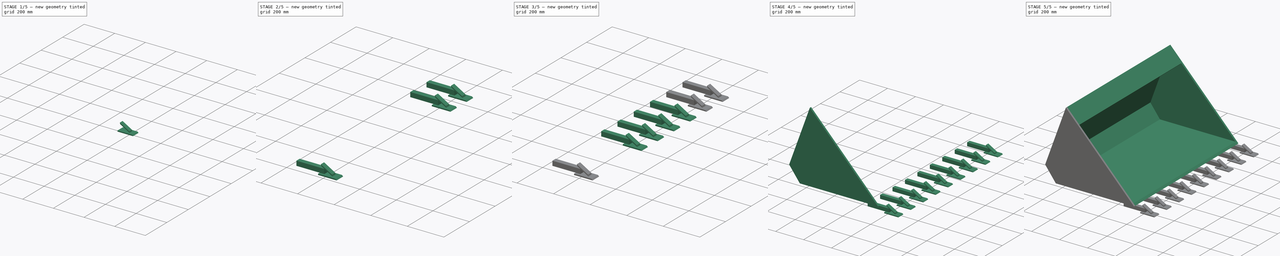
[diagram: build sequence overview — one tinted view per stage of 5, left to right]
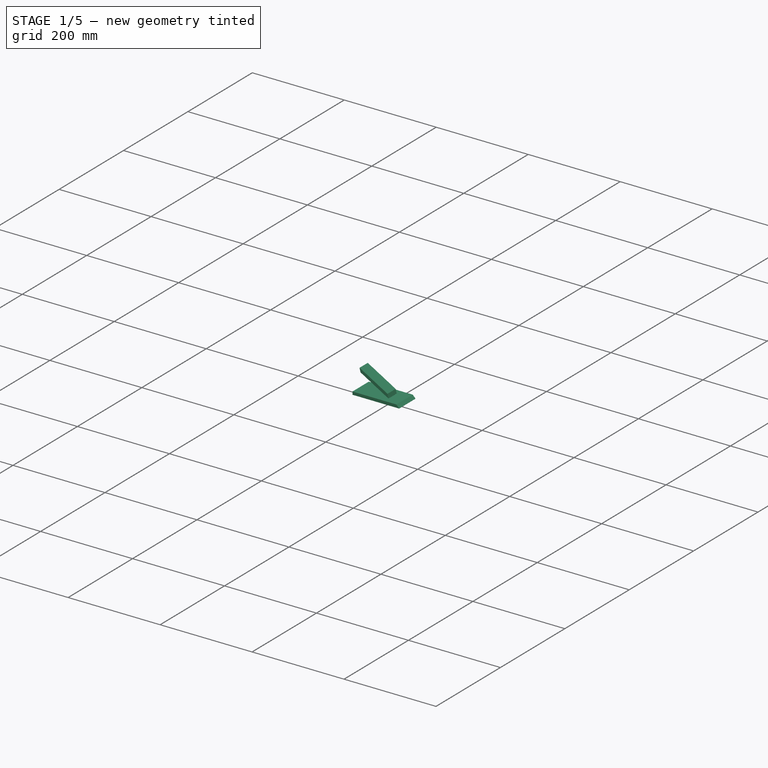
[diagram: stage 1 of 5 — iso view after this stage's code; geometry added in this stage tinted green]
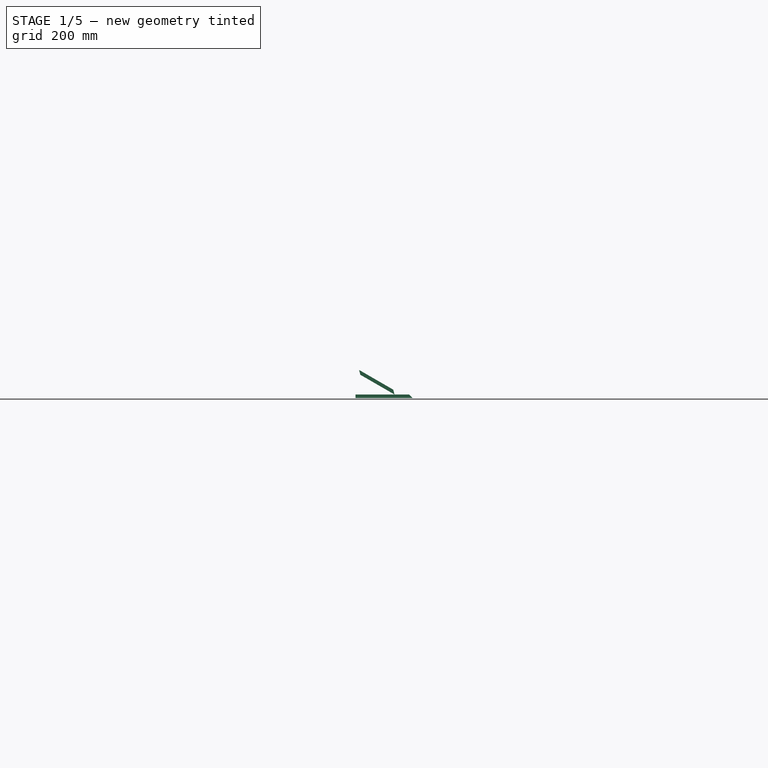
[diagram: stage 1 of 5 — front view after this stage's code; geometry added in this stage tinted green]
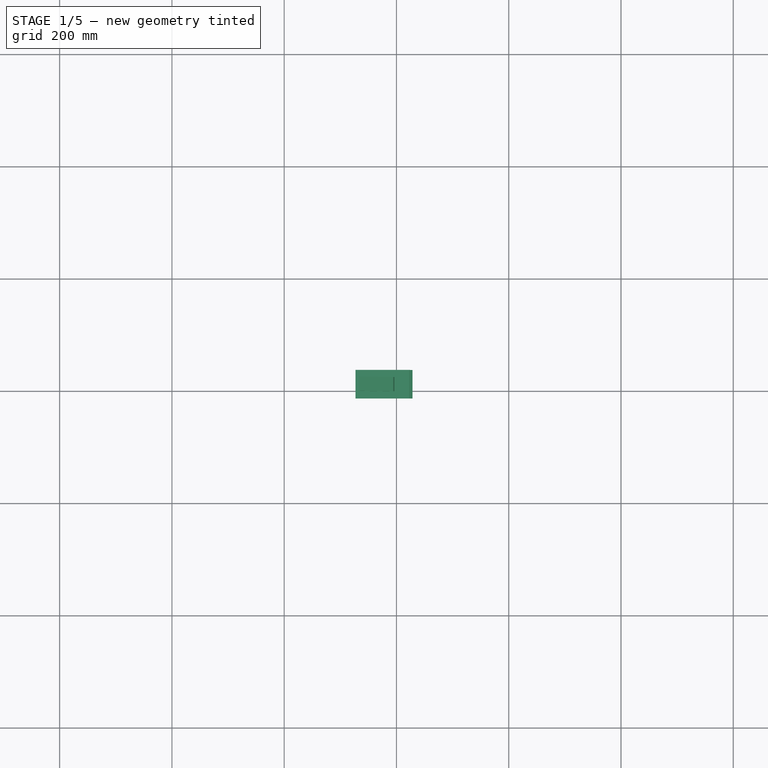
[diagram: stage 1 of 5 — top view after this stage's code; geometry added in this stage tinted green]
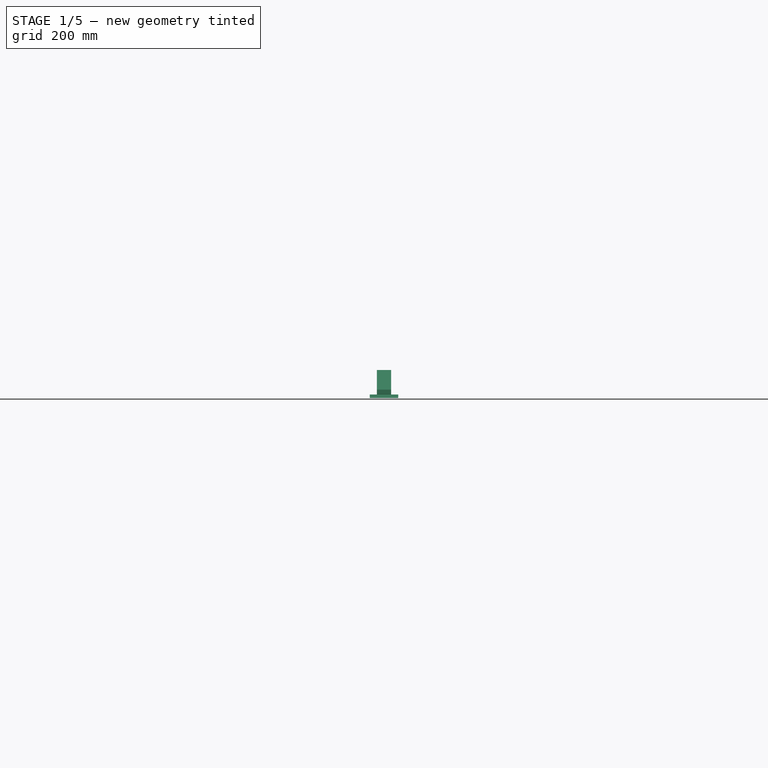
[diagram: stage 1 of 5 — right view after this stage's code; geometry added in this stage tinted green]
FCSTD DOCUMENT  (FreeCAD 0.16R6712 (Git))
Label: MT_ Bucket 25in + Teeth
License: All rights reserved
LicenseURL: http://en.wikipedia.org/wiki/All_rights_reserved
objects: Part::MultiFuse×12, PartDesign::Pad×3, Part::Box×3, Sketcher::SketchObject×2, Part::Chamfer×2
note: 25 computed .brp shape members not serialized (recipe doc carries the construction recipe); baked Part::Feature solids carry a one-line shape summary decoded from their .brp

FEATURE [Part::Box] Box001  label="Cube"
  Height = 6.35
  Length = 101.6
  Placement = pos=(127,-12.7,-6.35) rot=(0,0,1;0rad)
  Width = 50.8
FEATURE [Part::Box] Box002  label="Cube 01"
  Height = 6.35
  Length = 76.2
  Placement = pos=(130.39,-0.875268,38.108) rot=(0,1,0;0.523599rad)
  Width = 25.4
FEATURE [Part::Chamfer] Chamfer  label="Knife"
  Base = -> Box001
  Edges = 1 edges r=6.1: [Edge6]
FEATURE [Part::Chamfer] Chamfer001  label="Breaker bar"
  Base = -> Box002
  Edges = 2 edges r=6.1: [Edge4,Edge6]
  Placement = pos=(0,0.875268,0) rot=(0,0,1;0rad)
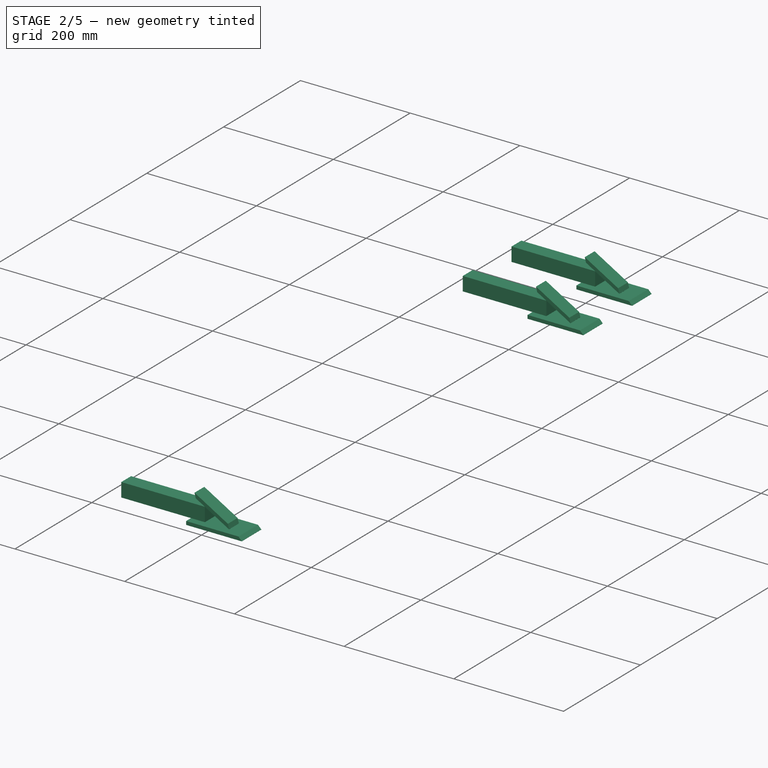
[diagram: stage 2 of 5 — iso view after this stage's code; geometry added in this stage tinted green]
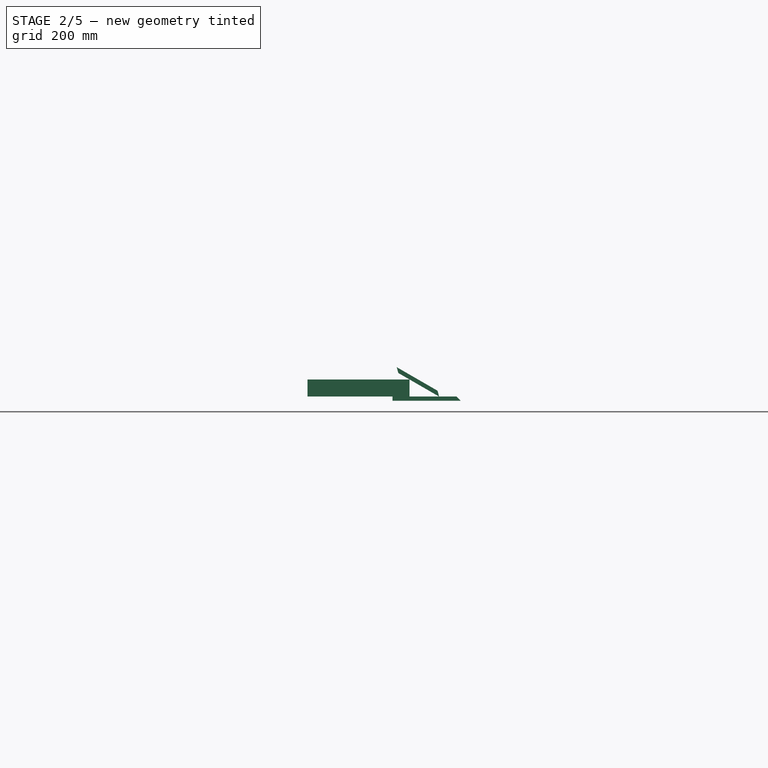
[diagram: stage 2 of 5 — front view after this stage's code; geometry added in this stage tinted green]
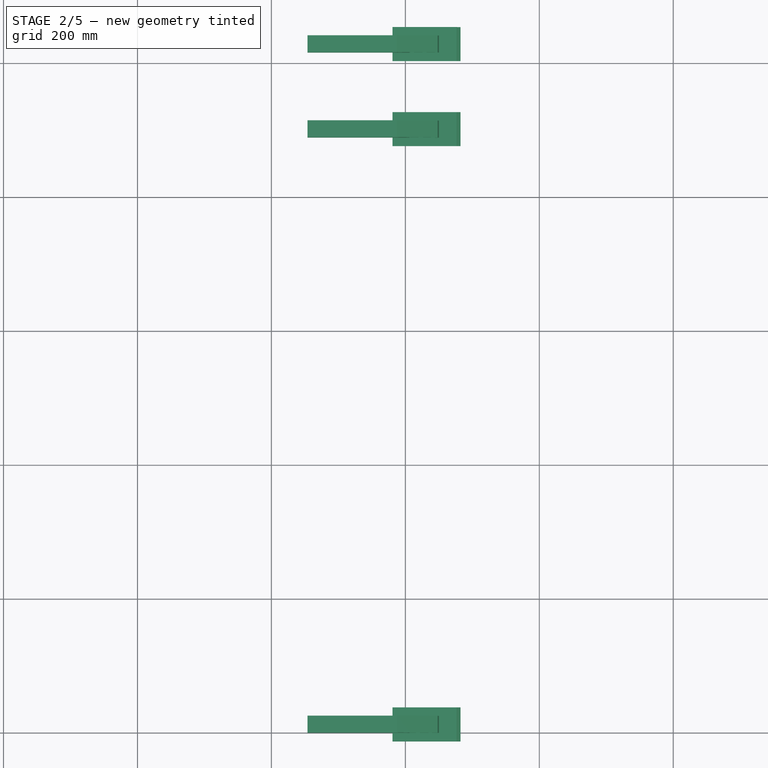
[diagram: stage 2 of 5 — top view after this stage's code; geometry added in this stage tinted green]
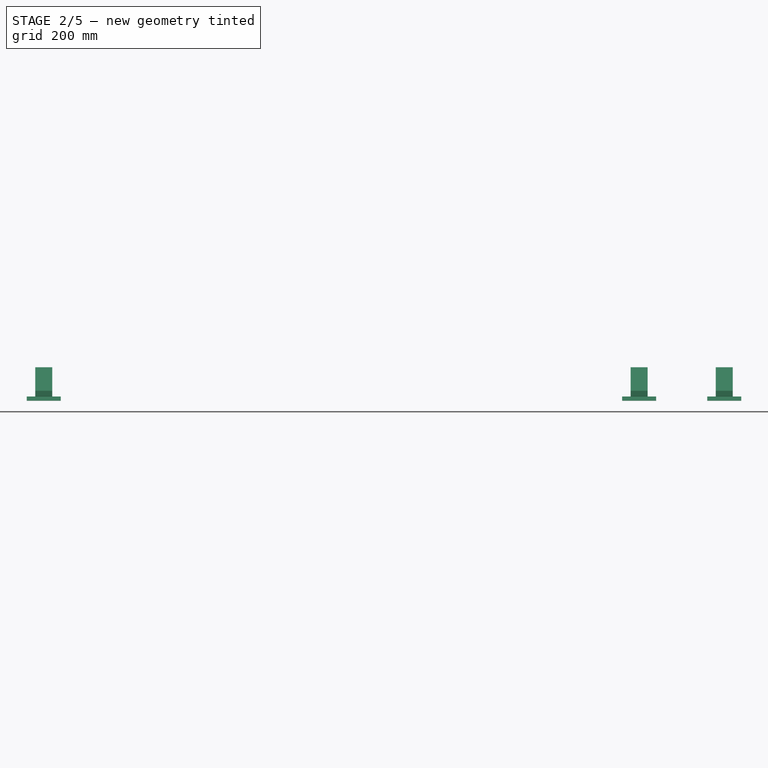
[diagram: stage 2 of 5 — right view after this stage's code; geometry added in this stage tinted green]
FEATURE [Part::MultiFuse] Fusion007  label="Tooth Bar007"
  Placement = pos=(653.821,889,-25.4001) rot=(0,0,1;0rad)
FEATURE [Part::MultiFuse] Fusion008  label="Tooth Bar008"
  Placement = pos=(653.821,1016,-25.4001) rot=(0,0,1;0rad)
FEATURE [Part::Box] Box  label="Shaft"
  Height = 25.4
  Length = 152.4
  Width = 25.4
FEATURE [Part::MultiFuse] Fusion009  label="Tooth Bar"
  Placement = pos=(653.821,5.34229e-05,-25.4001) rot=(0,0,1;0rad)
  Shapes = -> [Box,Chamfer001,Chamfer]
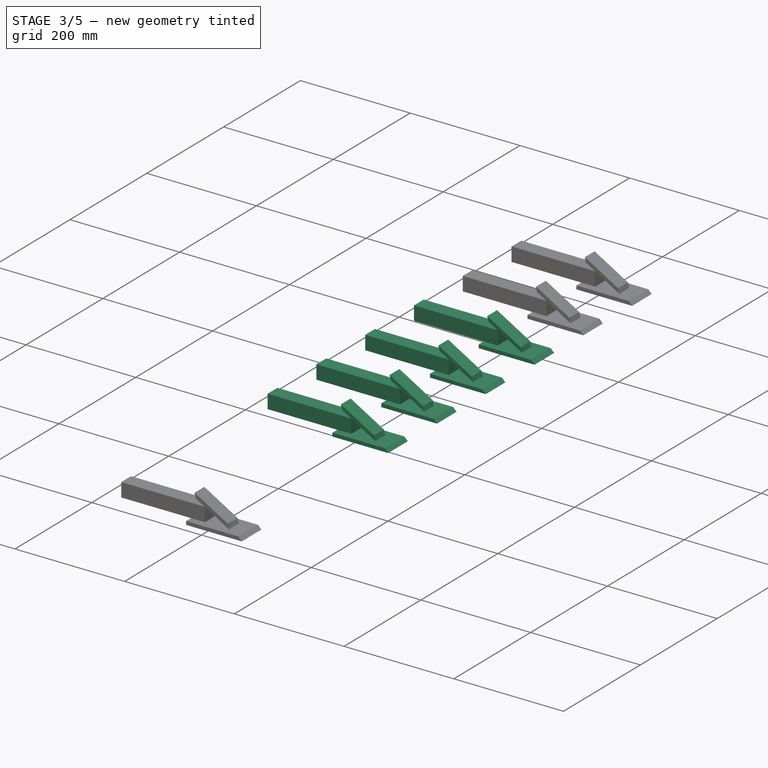
[diagram: stage 3 of 5 — iso view after this stage's code; geometry added in this stage tinted green]
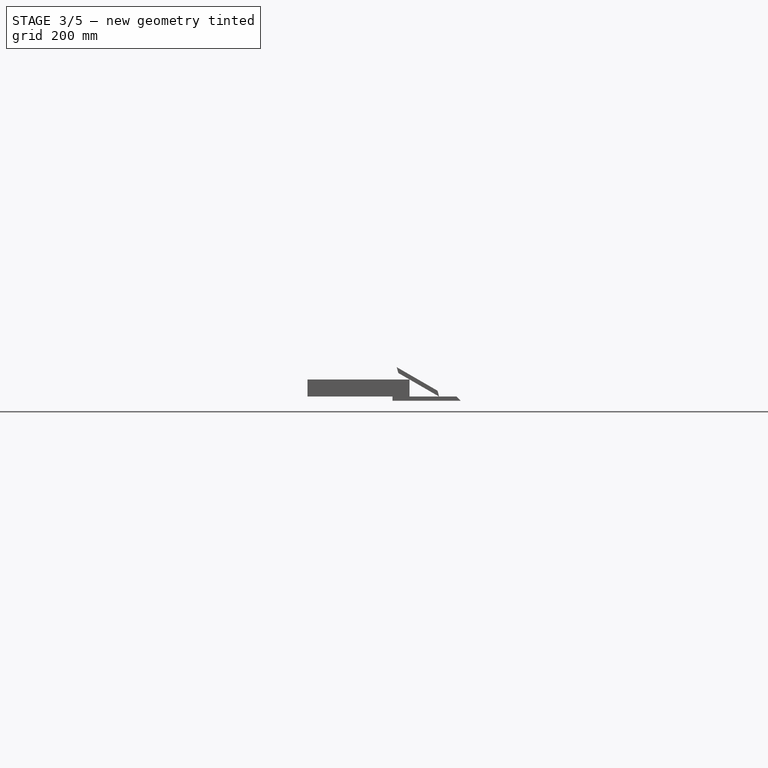
[diagram: stage 3 of 5 — front view after this stage's code; geometry added in this stage tinted green]
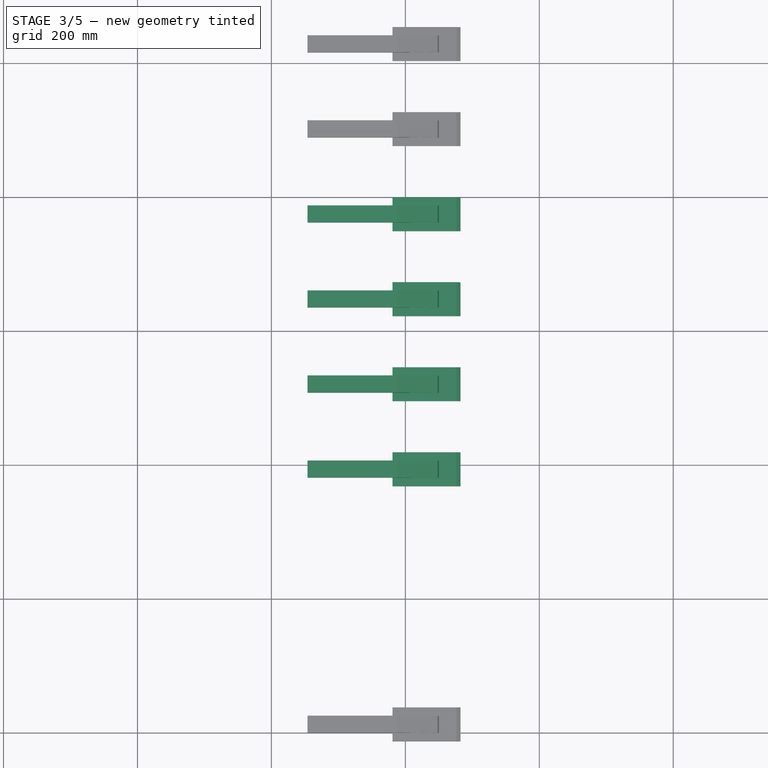
[diagram: stage 3 of 5 — top view after this stage's code; geometry added in this stage tinted green]
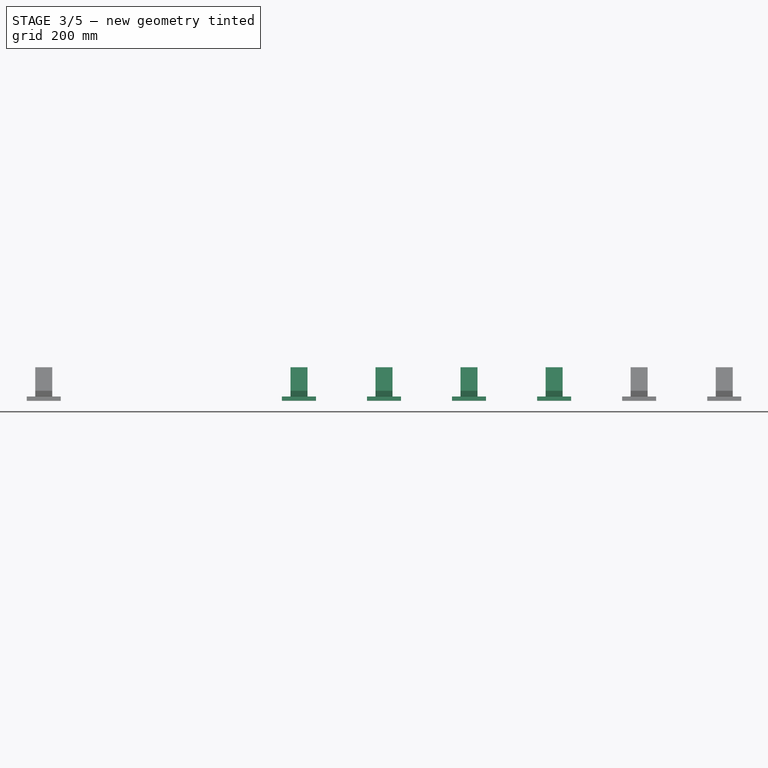
[diagram: stage 3 of 5 — right view after this stage's code; geometry added in this stage tinted green]
FEATURE [Part::MultiFuse] Fusion003  label="Tooth Bar003"
  Placement = pos=(653.821,381,-25.4001) rot=(0,0,1;0rad)
FEATURE [Part::MultiFuse] Fusion004  label="Tooth Bar004"
  Placement = pos=(653.821,508,-25.4001) rot=(0,0,1;0rad)
FEATURE [Part::MultiFuse] Fusion005  label="Tooth Bar005"
  Placement = pos=(653.821,635,-25.4001) rot=(0,0,1;0rad)
FEATURE [Part::MultiFuse] Fusion006  label="Tooth Bar006"
  Placement = pos=(653.821,762,-25.4001) rot=(0,0,1;0rad)
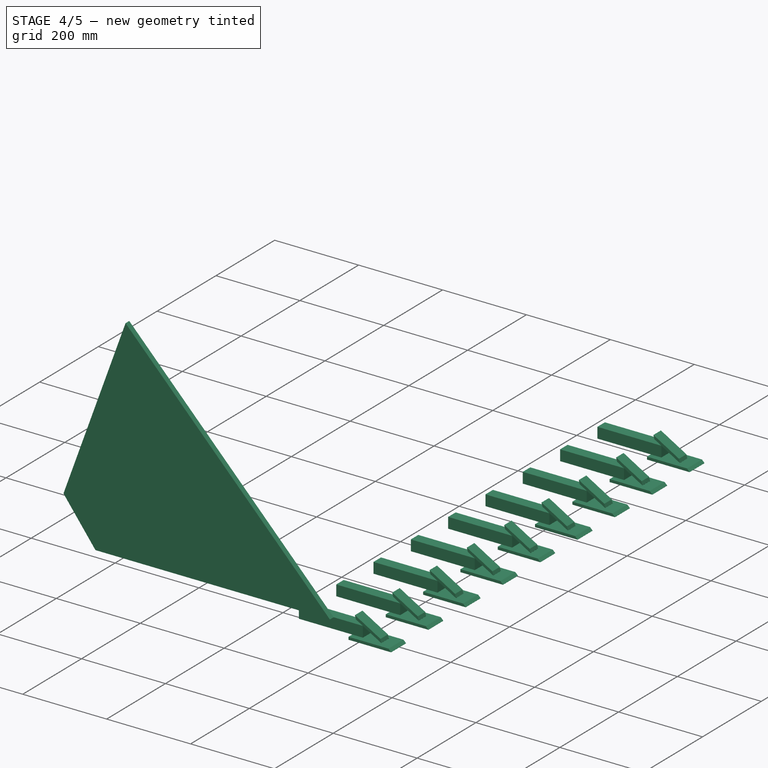
[diagram: stage 4 of 5 — iso view after this stage's code; geometry added in this stage tinted green]
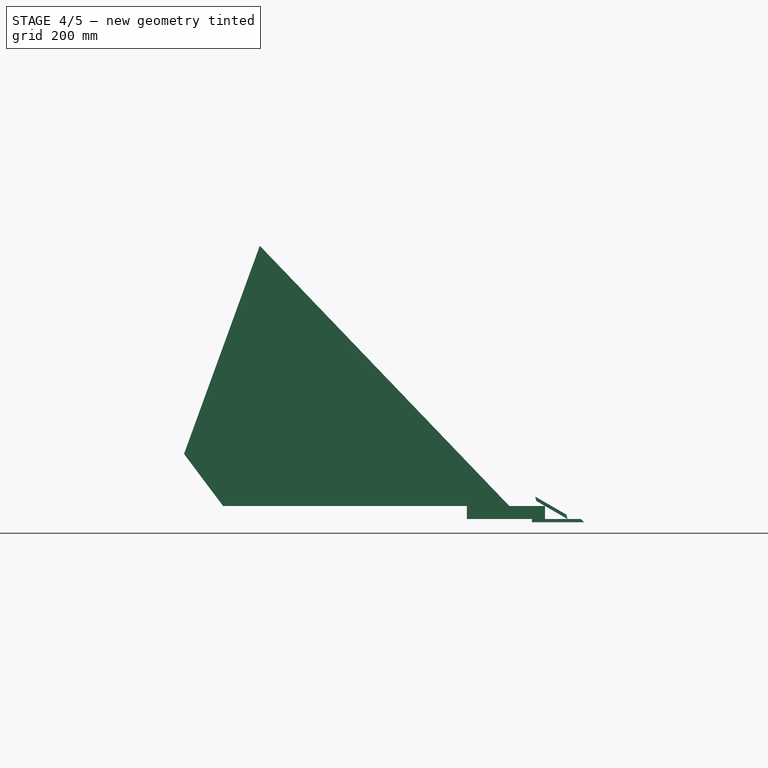
[diagram: stage 4 of 5 — front view after this stage's code; geometry added in this stage tinted green]
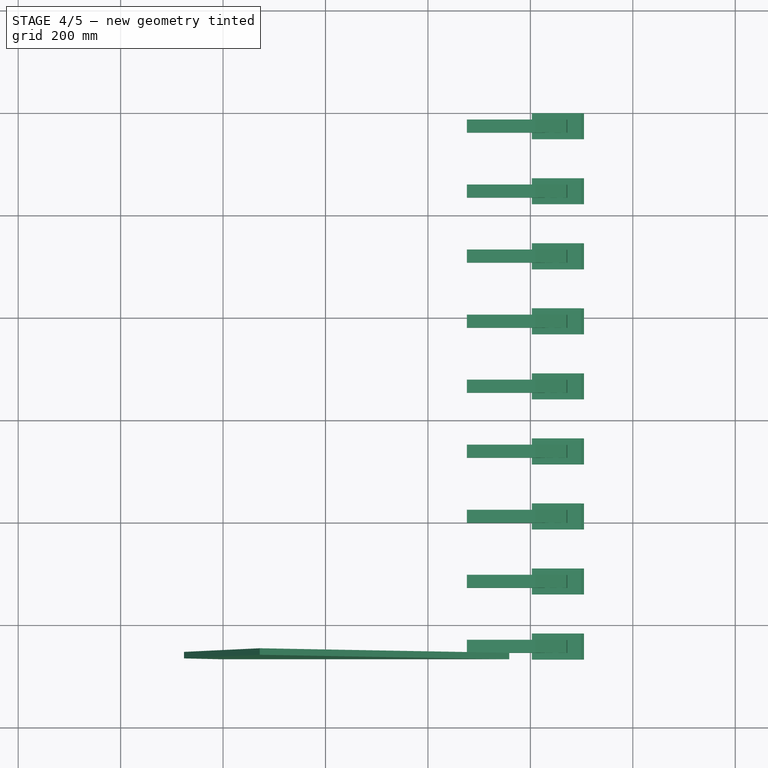
[diagram: stage 4 of 5 — top view after this stage's code; geometry added in this stage tinted green]
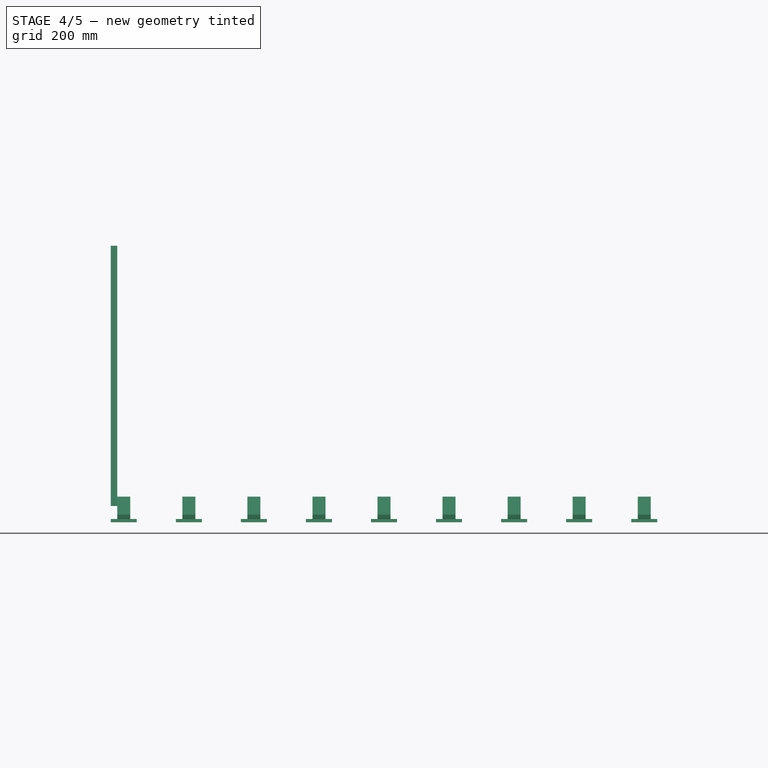
[diagram: stage 4 of 5 — right view after this stage's code; geometry added in this stage tinted green]
FEATURE [Part::MultiFuse] Fusion001  label="Tooth Bar001"
  Placement = pos=(653.821,127,-25.4001) rot=(0,0,1;0rad)
FEATURE [Part::MultiFuse] Fusion002  label="Tooth Bar002"
  Placement = pos=(653.821,254,-25.4001) rot=(0,0,1;0rad)
FEATURE [PartDesign::Pad] Pad001
  Length = 12.7
  Length2 = 100
  Placement = pos=(0,-1054.1,1e-12) rot=(1,0,0;1.5708rad)
  Sketch = -> Sketch
  Type = 0
FEATURE [Part::MultiFuse] Fusion010
  Placement = pos=(-177.8,-1054.1,5.46216e-05) rot=(0,0,1;0rad)
  Shapes = -> [Fusion009,Fusion002,Fusion003,Fusion001,Fusion004,Fusion005,Fusion006,Fusion007,Fusion008]
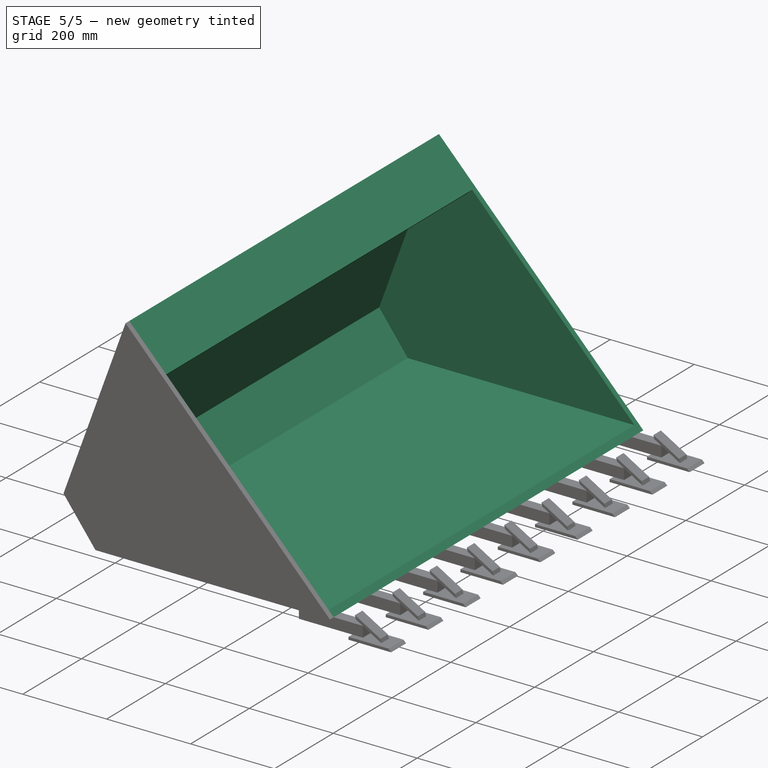
[diagram: stage 5 of 5 — iso view after this stage's code; geometry added in this stage tinted green]
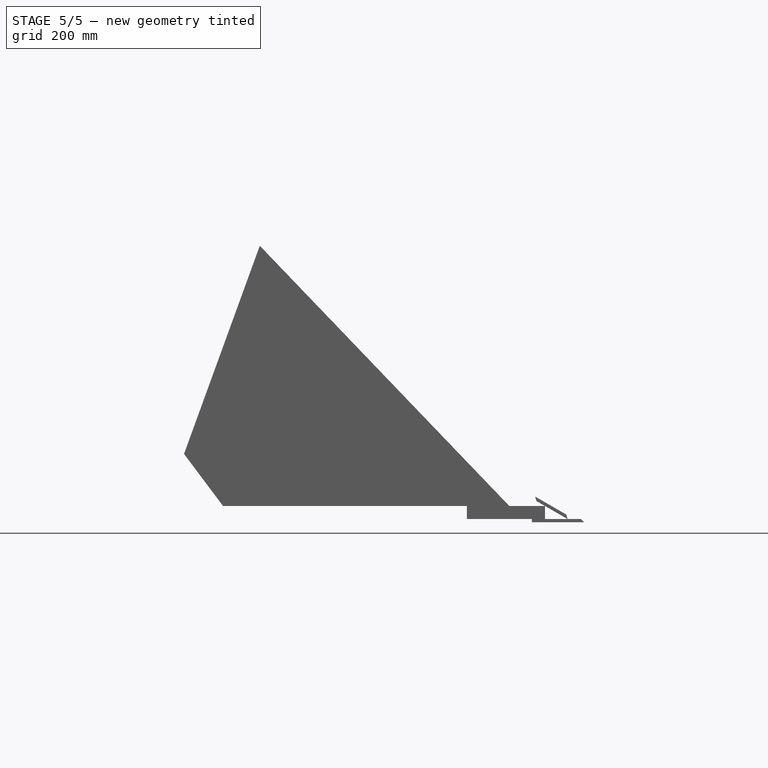
[diagram: stage 5 of 5 — front view after this stage's code; geometry added in this stage tinted green]
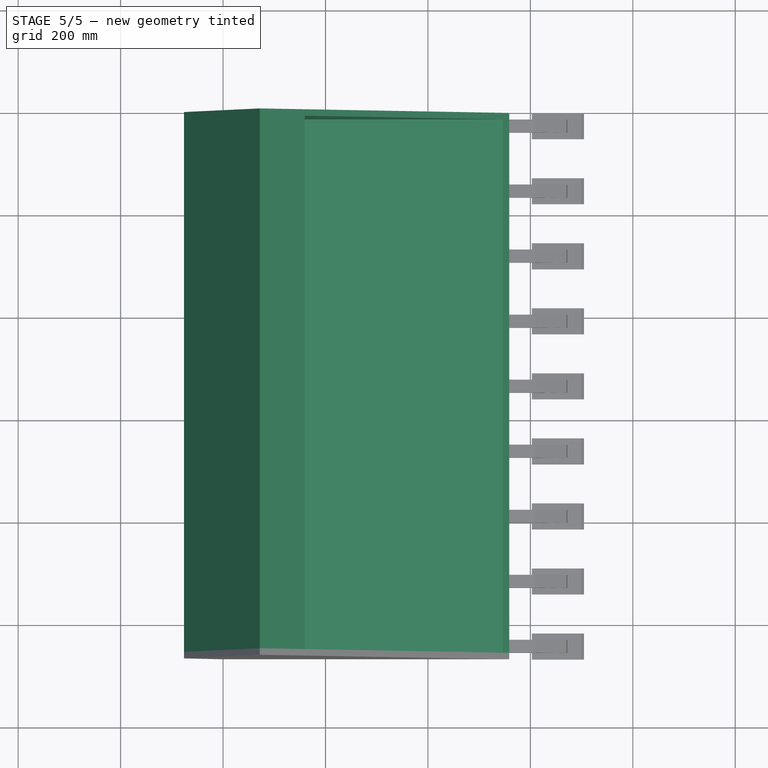
[diagram: stage 5 of 5 — top view after this stage's code; geometry added in this stage tinted green]
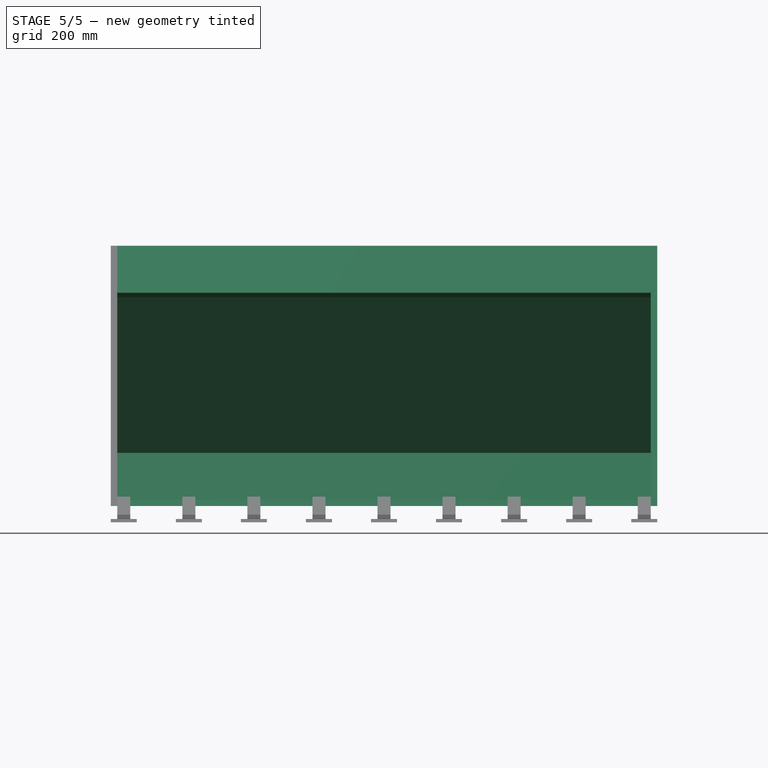
[diagram: stage 5 of 5 — right view after this stage's code; geometry added in this stage tinted green]
FEATURE [Sketcher::SketchObject] Sketch
  Placement = pos=(0,0,0) rot=(1,0,0;1.5708rad)
  sketch-geometry (4):
    g0: LineSegment StartX=558.8 StartY=0 StartZ=0 EndX=71.7175 EndY=508 EndZ=0
    g1: LineSegment StartX=71.7175 StartY=508 StartZ=0 EndX=-76.2 EndY=101.6 EndZ=0
    g2: LineSegment StartX=-76.2 StartY=101.6 StartZ=0 EndX=0 EndY=0 EndZ=0
    g3: LineSegment StartX=0 StartY=0 StartZ=0 EndX=558.8 EndY=0 EndZ=0
  constraints (11):
    c: Coincident(g0,g1)
    c: Coincident(g1,g2)
    c: DistanceY(g-1,g0) = 508
    c: Angle(g-2,g1) = 2.79253
    c: DistanceX(g1) = -76.2
    c: DistanceY(g1) = 101.6
    c: Coincident(g3,g-1)
    c: Coincident(g3,g0)
    c: Horizontal(g3)
    c: Distance(g3) = 558.8
    c: Coincident(g2,g3)
FEATURE [PartDesign::Pad] Pad
  Length = 12.7
  Length2 = 100
  Placement = pos=(0,-1054.1,1e-12) rot=(1,0,0;1.5708rad)
  Sketch = -> Sketch
  Type = 0
FEATURE [Sketcher::SketchObject] Sketch001
  ExternalGeometry = -> [Pad001]
  Placement = pos=(0,-12.7,0) rot=(1,0,0;1.5708rad)
  Support = -> Pad001 [Face6]
  sketch-geometry (10):
    g0: LineSegment StartX=71.7175 StartY=508 StartZ=0 EndX=-76.2 EndY=101.6 EndZ=0
    g1: LineSegment StartX=-76.2 StartY=101.6 StartZ=0 EndX=0 EndY=0 EndZ=0
    g2: LineSegment StartX=0 StartY=0 StartZ=0 EndX=558.8 EndY=0 EndZ=0
    g3: LineSegment StartX=558.8 StartY=0 StartZ=0 EndX=546.623 EndY=12.7 EndZ=0
    g4: LineSegment StartX=546.623 StartY=12.7 StartZ=0 EndX=6.35 EndY=12.7 EndZ=0
    g5: LineSegment StartX=6.35 StartY=12.7 StartZ=0 EndX=-61.9139 EndY=103.718 EndZ=0
    g6: LineSegment StartX=71.7175 StartY=508 StartZ=0 EndX=159.613 EndY=416.33 EndZ=0
    g7: LineSegment StartX=159.613 StartY=416.33 StartZ=0 EndX=150.446 EndY=407.54 EndZ=0
    g8: LineSegment StartX=150.446 StartY=407.54 StartZ=0 EndX=76.6727 EndY=484.482 EndZ=0
    g9: LineSegment StartX=76.6727 StartY=484.482 StartZ=0 EndX=-61.9139 EndY=103.718 EndZ=0
  constraints (26):
    c: Coincident(g0,g-4)
    c: Coincident(g0,g1)
    c: Coincident(g1,g2)
    c: Coincident(g2,g3)
    c: Coincident(g3,g4)
    c: Horizontal(g4)
    c: Coincident(g4,g5)
    c: Coincident(g0,g-3)
    c: Coincident(g0,g6)
    c: Coincident(g6,g7)
    c: Coincident(g7,g8)
    c: Coincident(g8,g9)
    c: Coincident(g9,g5)
    c: Distance(g6) = 127
    c: PointOnObject(g6,g-6)
    c: Parallel(g8,g-6)
    c: Perpendicular(g-6,g7)
    c: Distance(g8,g-3) = 12.7
    c: Distance(g8,g-6) = 12.7
    c: Parallel(g9,g-3)
    c: Parallel(g5,g-4)
    c: PointOnObject(g3,g-6)
    c: Coincident(g1,g-5)
    c: Coincident(g2,g-6)
    c: Distance(g3,g-5) = 12.7
    c: Distance(g4,g-4) = 12.7
FEATURE [PartDesign::Pad] Pad002
  Length = 1041.4
  Length2 = 100
  Placement = pos=(0,0,0) rot=(1,0,0;1.5708rad)
  Sketch = -> Sketch001
  Type = 0
FEATURE [Part::MultiFuse] Fusion
  Shapes = -> [Pad001,Pad002,Pad]
FEATURE [Part::MultiFuse] Fusion011
  Shapes = -> [Fusion,Fusion010]
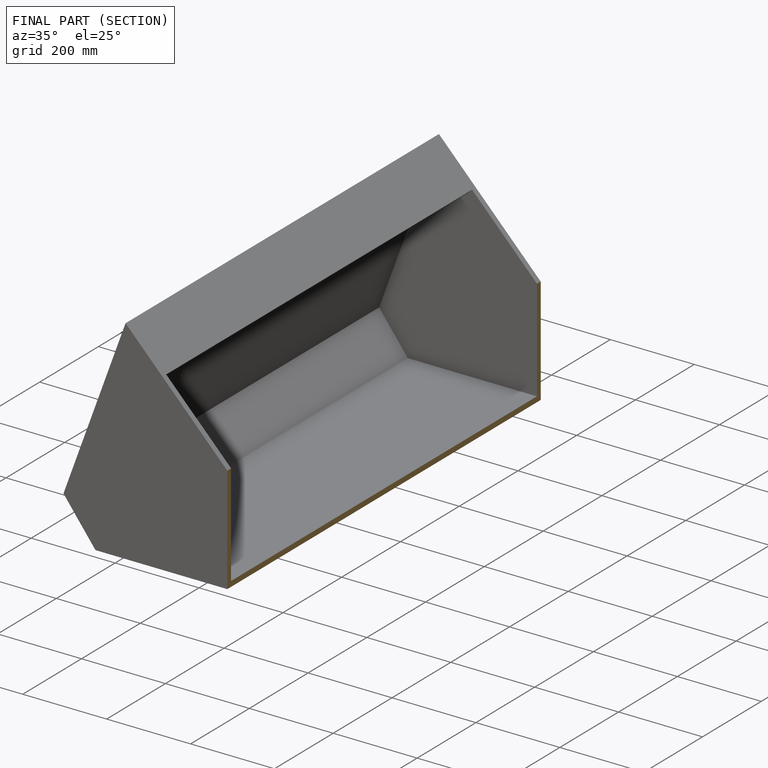
[diagram: finished part — half-section view (interior)]
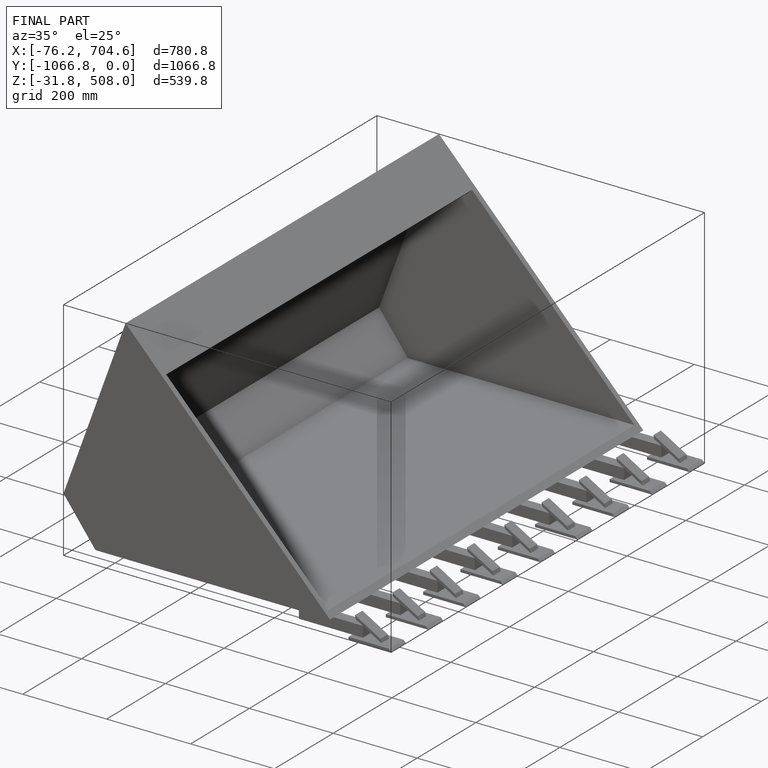
[diagram: finished part — iso view with bounding-box wireframe]
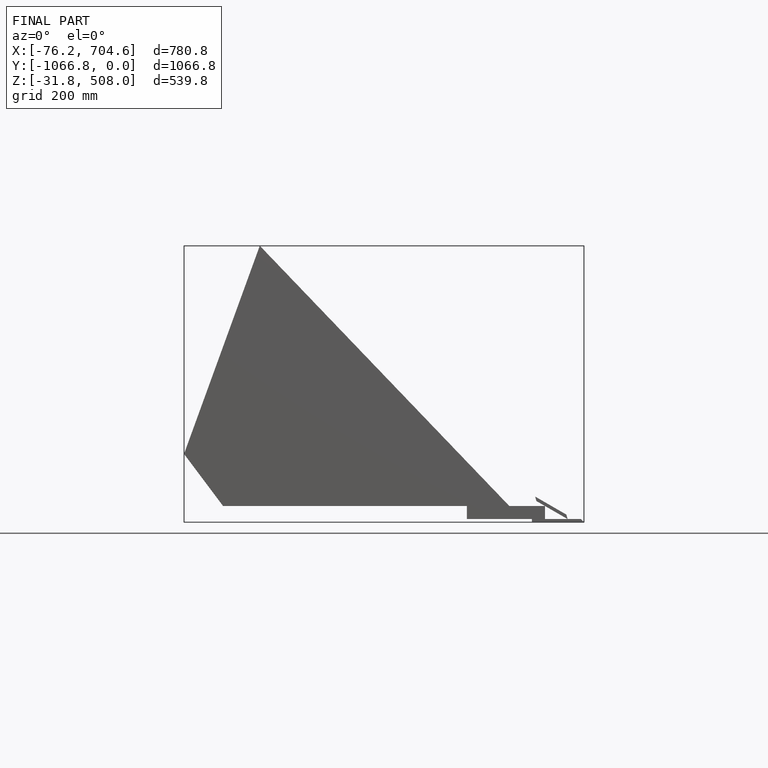
[diagram: finished part — front view with bounding-box wireframe]
